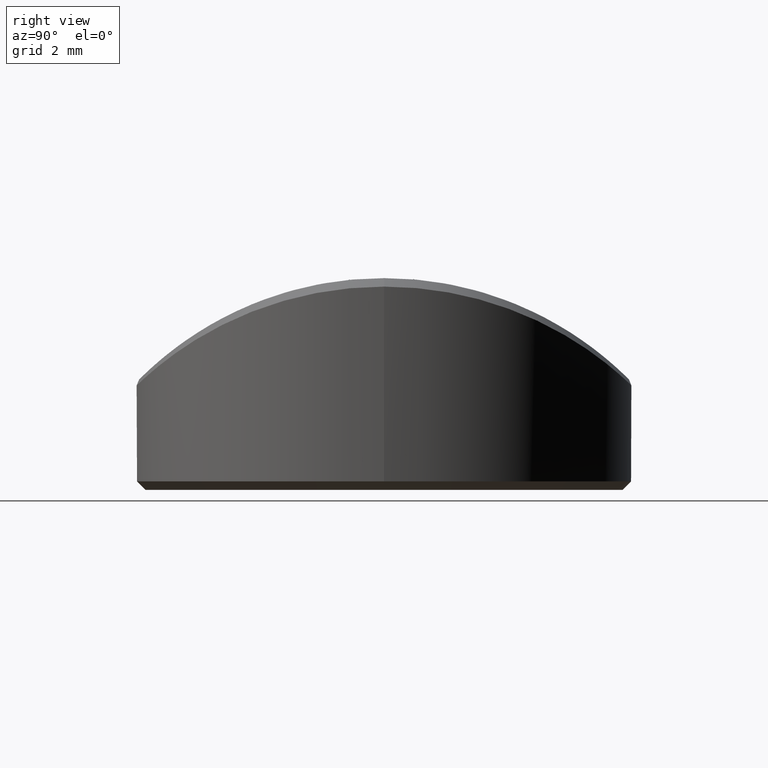
[diagram: clean part render]
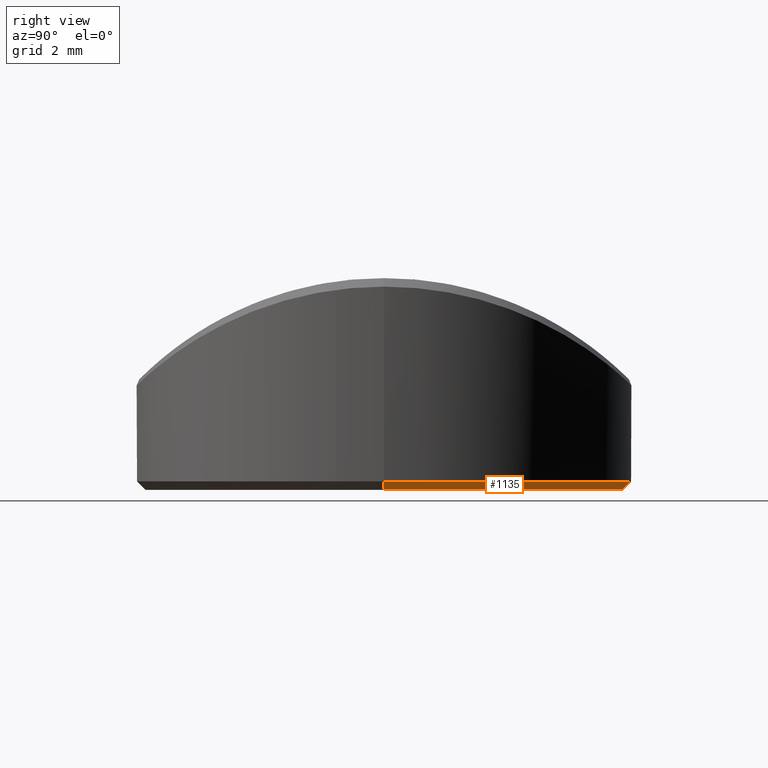
[diagram: same view with one face highlighted and labeled with its STEP entity id]
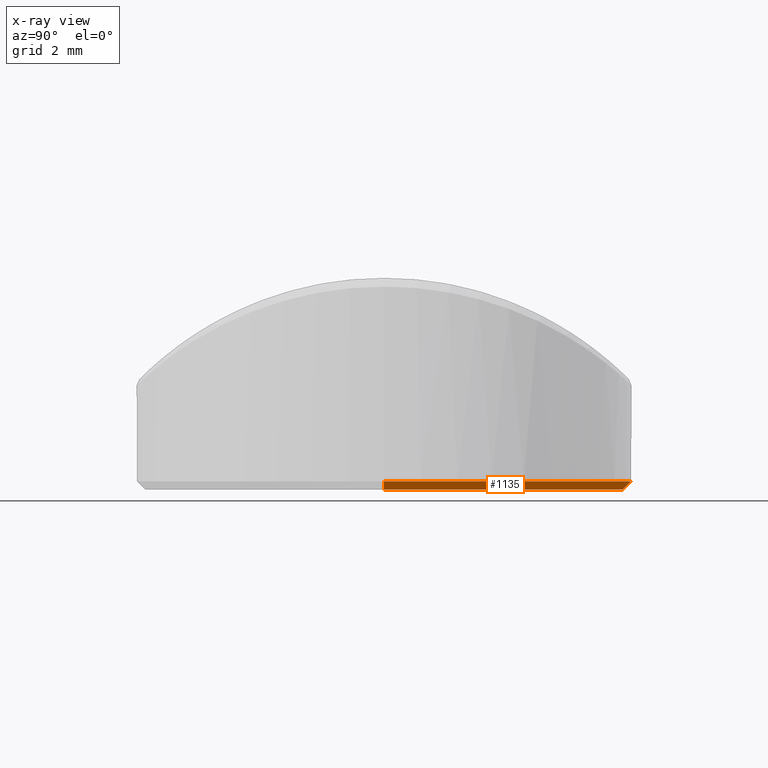
[diagram: x-ray of the same camera — body ghosted, the highlighted face saturated]
A machine part, right view. The second image highlights one B-rep face of the part: STEP entity #1135.
The next image is the same camera in x-ray: the body ghosted, the highlighted face saturated — about 0% of this face is hidden behind the body in this view.
In plain terms, the highlighted conical surface has half-angle 45 deg.
Its self-contained STEP definition (entity closure, byte-faithful):
#7 = DIRECTION ( 'NONE',  ( -0.000000000000000000, -0.000000000000000000, 1.000000000000000000 ) ) ;
#13 = ORIENTED_EDGE ( 'NONE', *, *, #2368, .F. ) ;
#42 = DIRECTION ( 'NONE',  ( -0.7071067811865489050, 8.659560562354951347E-17, 0.7071067811865460184 ) ) ;
#199 = DIRECTION ( 'NONE',  ( 1.000000000000000000, 0.000000000000000000, 0.000000000000000000 ) ) ;
#204 = VERTEX_POINT ( 'NONE', #593 ) ;
#218 = AXIS2_PLACEMENT_3D ( 'NONE', #1322, #405, #1696 ) ;
#405 = DIRECTION ( 'NONE',  ( -0.000000000000000000, -0.000000000000000000, 1.000000000000000000 ) ) ;
#593 = CARTESIAN_POINT ( 'NONE',  ( -5.650000000000000355, 7.041719095097280880E-16, 0.000000000000000000 ) ) ;
#670 = EDGE_CURVE ( 'NONE', #204, #1089, #1677, .T. ) ;
#735 = ORIENTED_EDGE ( 'NONE', *, *, #670, .T. ) ;
#757 = CONICAL_SURFACE ( 'NONE', #218, 5.849999999999999645, 0.7853981633974503884 ) ;
#872 = VECTOR ( 'NONE', #42, 1000.000000000000114 ) ;
#934 = ORIENTED_EDGE ( 'NONE', *, *, #2124, .F. ) ;
#1019 = CIRCLE ( 'NONE', #2023, 5.650000000000000355 ) ;
#1089 = VERTEX_POINT ( 'NONE', #2044 ) ;
#1135 = ADVANCED_FACE ( 'NONE', ( #2240 ), #757, .T. ) ;
#1243 = DIRECTION ( 'NONE',  ( 0.7071067811865489050, 0.000000000000000000, 0.7071067811865460184 ) ) ;
#1257 = CARTESIAN_POINT ( 'NONE',  ( 5.849999999999999645, 0.000000000000000000, 0.1999999999999979294 ) ) ;
#1263 = VERTEX_POINT ( 'NONE', #1551 ) ;
#1270 = DIRECTION ( 'NONE',  ( 1.000000000000000000, 0.000000000000000000, 0.000000000000000000 ) ) ;
#1275 = ORIENTED_EDGE ( 'NONE', *, *, #1698, .F. ) ;
#1322 = CARTESIAN_POINT ( 'NONE',  ( 0.000000000000000000, 0.000000000000000000, 0.1999999999999979294 ) ) ;
#1527 = DIRECTION ( 'NONE',  ( -0.000000000000000000, -0.000000000000000000, -1.000000000000000000 ) ) ;
#1551 = CARTESIAN_POINT ( 'NONE',  ( 5.650000000000000355, 0.000000000000000000, 0.000000000000000000 ) ) ;
#1610 = CARTESIAN_POINT ( 'NONE',  ( 5.849999999999999645, 7.164183775012015436E-16, 0.1999999999999979294 ) ) ;
#1677 = LINE ( 'NONE', #2051, #872 ) ;
#1696 = DIRECTION ( 'NONE',  ( 1.000000000000000000, 0.000000000000000000, 0.000000000000000000 ) ) ;
#1698 = EDGE_CURVE ( 'NONE', #204, #1263, #1019, .T. ) ;
#1757 = VECTOR ( 'NONE', #1243, 1000.000000000000114 ) ;
#1768 = CARTESIAN_POINT ( 'NONE',  ( 0.000000000000000000, 0.000000000000000000, 0.1999999999999979294 ) ) ;
#1985 = CIRCLE ( 'NONE', #2293, 5.849999999999999645 ) ;
#1996 = VERTEX_POINT ( 'NONE', #1610 ) ;
#2023 = AXIS2_PLACEMENT_3D ( 'NONE', #2053, #1527, #199 ) ;
#2044 = CARTESIAN_POINT ( 'NONE',  ( -5.849999999999999645, 0.000000000000000000, 0.1999999999999979294 ) ) ;
#2051 = CARTESIAN_POINT ( 'NONE',  ( -5.849999999999999645, 7.164183775012015436E-16, 0.1999999999999979294 ) ) ;
#2053 = CARTESIAN_POINT ( 'NONE',  ( 0.000000000000000000, 0.000000000000000000, 0.000000000000000000 ) ) ;
#2124 = EDGE_CURVE ( 'NONE', #1263, #1996, #2372, .T. ) ;
#2240 = FACE_OUTER_BOUND ( 'NONE', #2377, .T. ) ;
#2293 = AXIS2_PLACEMENT_3D ( 'NONE', #1768, #7, #1270 ) ;
#2368 = EDGE_CURVE ( 'NONE', #1996, #1089, #1985, .T. ) ;
#2372 = LINE ( 'NONE', #1257, #1757 ) ;
#2377 = EDGE_LOOP ( 'NONE', ( #1275, #735, #13, #934 ) ) ;